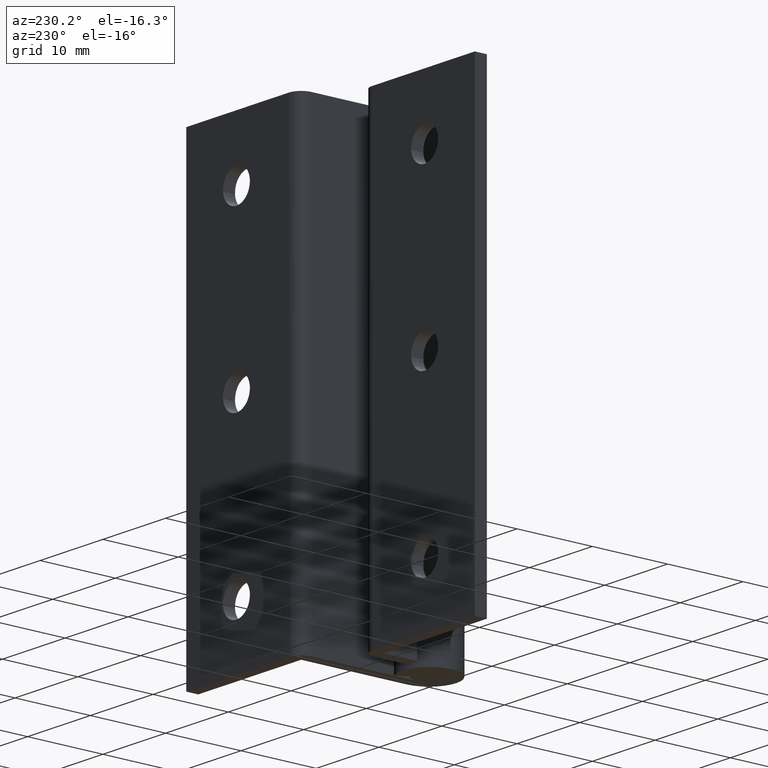
[diagram: clean part render]
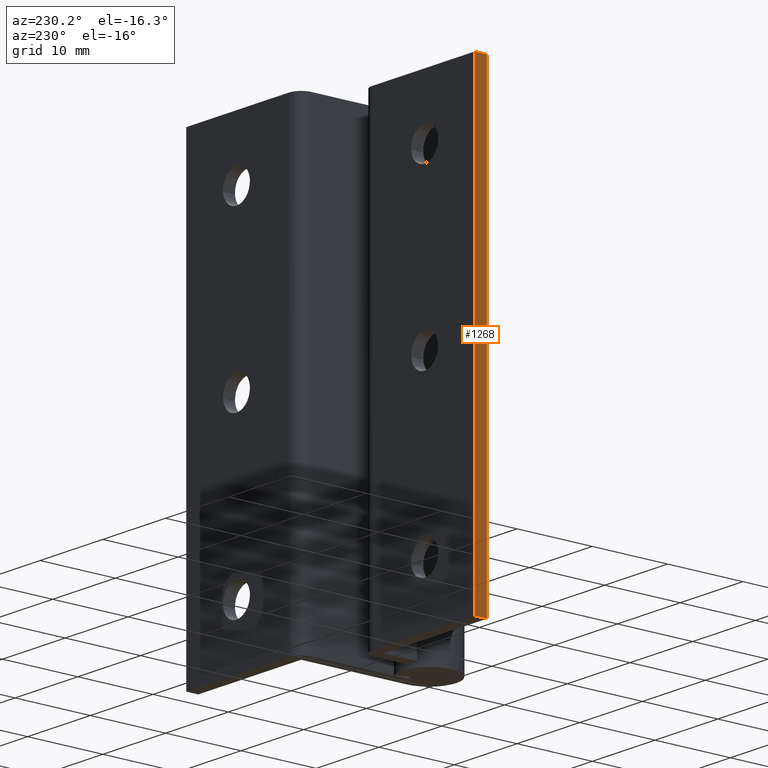
[diagram: same view with one face highlighted and labeled with its STEP entity id]
A machine part, auxiliary view. The second image highlights one B-rep face of the part: STEP entity #1268.
In plain terms, the highlighted face is a freeform B-spline surface patch.
Its self-contained STEP definition (entity closure, byte-faithful):
#1163=CARTESIAN_POINT('',(-20.0,10.600006000000100,59.999991999999999));
#1164=VERTEX_POINT('',#1163);
#1170=CARTESIAN_POINT('',(-20.0,9.0,59.999991999999999));
#1171=VERTEX_POINT('',#1170);
#1172=CARTESIAN_POINT('',(-20.0,9.0,59.999991999999999));
#1173=CARTESIAN_POINT('',(-20.0,10.600006000000100,59.999991999999999));
#1174=QUASI_UNIFORM_CURVE('',1,(#1172,#1173),.UNSPECIFIED.,.F.,.U.);
#1175=EDGE_CURVE('',#1171,#1164,#1174,.T.);
#1241=CARTESIAN_POINT('',(-20.0,8.920079697684770,62.996992047345387));
#1242=CARTESIAN_POINT('',(-20.0,8.920079697684770,-2.997001120228838));
#1243=CARTESIAN_POINT('',(-20.0,10.679926459672190,62.996992047345387));
#1244=CARTESIAN_POINT('',(-20.0,10.679926459672190,-2.997001120228838));
#1245=B_SPLINE_SURFACE_WITH_KNOTS('',1,1,((#1241,#1243),(#1242,#1244)),.UNSPECIFIED.,.F.,.F.,.U.,(2,2),(2,2),(0.0,65.993993167574217),(0.041708331971243,0.958291749985144),.UNSPECIFIED.);
#1246=ORIENTED_EDGE('',*,*,#1175,.T.);
#1247=CARTESIAN_POINT('',(-20.0,10.600006000000100,0.0));
#1248=VERTEX_POINT('',#1247);
#1249=CARTESIAN_POINT('',(-20.0,10.600006000000100,0.0));
#1250=CARTESIAN_POINT('',(-20.0,10.600006000000100,59.999991999999999));
#1251=QUASI_UNIFORM_CURVE('',1,(#1249,#1250),.UNSPECIFIED.,.F.,.U.);
#1252=EDGE_CURVE('',#1248,#1164,#1251,.T.);
#1253=ORIENTED_EDGE('',*,*,#1252,.F.);
#1254=CARTESIAN_POINT('',(-20.0,9.0,0.0));
#1255=VERTEX_POINT('',#1254);
#1256=CARTESIAN_POINT('',(-20.0,9.0,0.0));
#1257=CARTESIAN_POINT('',(-20.0,10.600006000000100,0.0));
#1258=QUASI_UNIFORM_CURVE('',1,(#1256,#1257),.UNSPECIFIED.,.F.,.U.);
#1259=EDGE_CURVE('',#1255,#1248,#1258,.T.);
#1260=ORIENTED_EDGE('',*,*,#1259,.F.);
#1261=CARTESIAN_POINT('',(-20.0,9.0,0.0));
#1262=CARTESIAN_POINT('',(-20.0,9.0,59.999991999999999));
#1263=QUASI_UNIFORM_CURVE('',1,(#1261,#1262),.UNSPECIFIED.,.F.,.U.);
#1264=EDGE_CURVE('',#1255,#1171,#1263,.T.);
#1265=ORIENTED_EDGE('',*,*,#1264,.T.);
#1266=EDGE_LOOP('',(#1246,#1253,#1260,#1265));
#1267=FACE_OUTER_BOUND('',#1266,.T.);
#1268=ADVANCED_FACE('',(#1267),#1245,.F.);